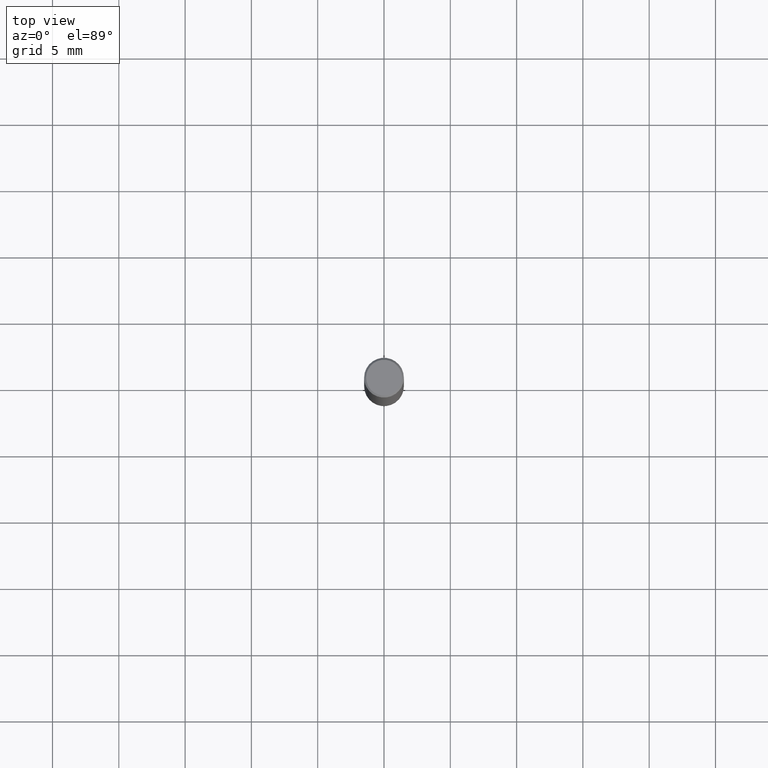
[diagram: clean part render]
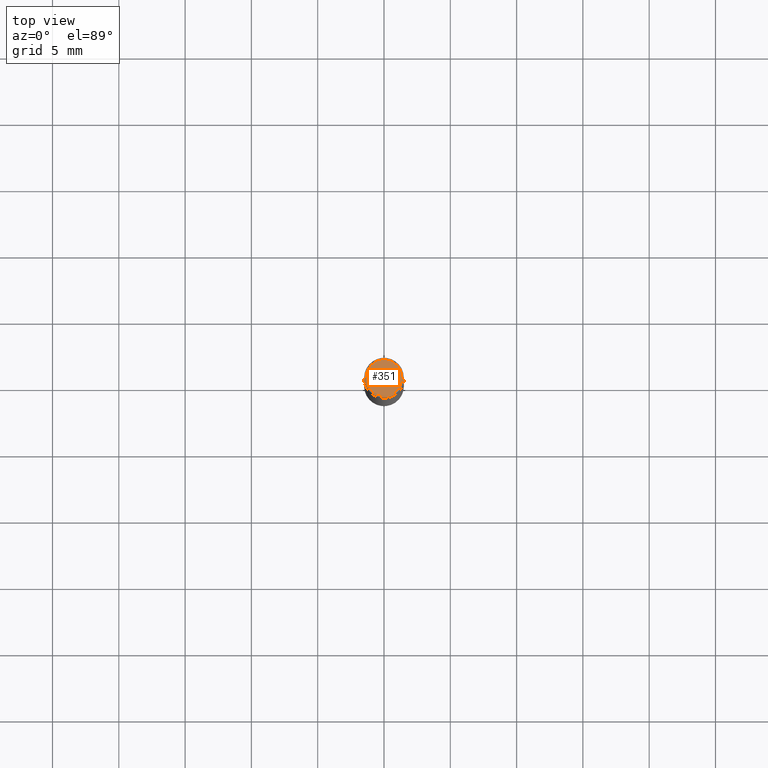
[diagram: same view with one face highlighted and labeled with its STEP entity id]
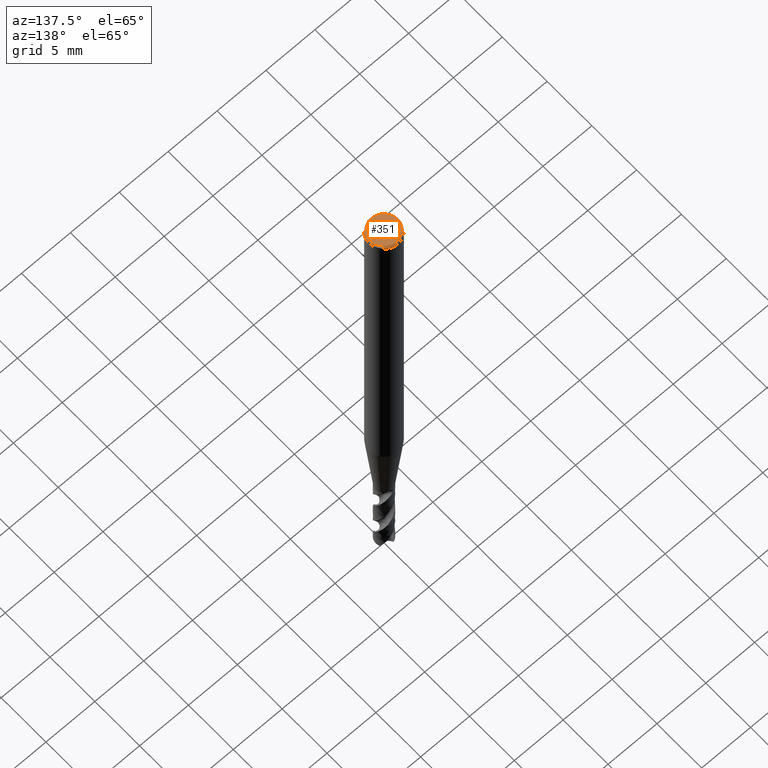
[diagram: same view with one face highlighted and labeled with its STEP entity id]
A machine part, top view. The second image highlights one B-rep face of the part: STEP entity #351.
A second angle (auxiliary view) of the same face is appended — the face is thin or edge-on in the first view.
In plain terms, the highlighted planar face has unit normal (0, -0, 1).
Its self-contained STEP definition (entity closure, byte-faithful):
#311 = VERTEX_POINT('', #312);
#312 = CARTESIAN_POINT('', (-1.35, 8.26636589424463E-17, 0.));
#318 = EDGE_CURVE('', #311, #311, #319, .T.);
#319 = CIRCLE('', #320, 1.35);
#320 = AXIS2_PLACEMENT_3D('', #321, #322, #323);
#321 = CARTESIAN_POINT('', (0., 0., 0.));
#322 = DIRECTION('', (3.74939945665464E-33, 6.12323399573677E-17, -1.));
#323 = DIRECTION('', (-1., 6.12323399573677E-17, 0.));
#351 = ADVANCED_FACE('', (#352), #355, .T.);
#352 = FACE_OUTER_BOUND('', #353, .T.);
#353 = EDGE_LOOP('', (#354));
#354 = ORIENTED_EDGE('', *, *, #318, .F.);
#355 = PLANE('', #356);
#356 = AXIS2_PLACEMENT_3D('', #357, #358, #359);
#357 = CARTESIAN_POINT('', (2.10010714012405, -2.10010714012405, -2.22354962926185E-14));
#358 = DIRECTION('', (5.26327952414889E-15, -5.32451186410626E-15, 1.));
#359 = DIRECTION('', (0., 1., 5.32451186410626E-15));